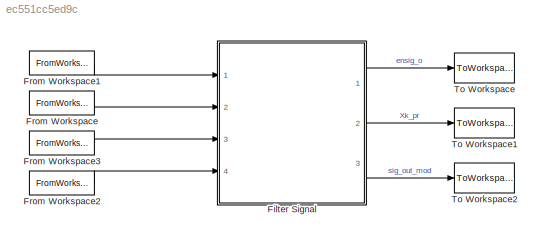
MODEL slx_ec551cc5ed9c
KIND model
CONFIG AbsTol = auto
CONFIG EnableMultiTasking = off
CONFIG FixedStep = auto
CONFIG InitFcn = block_verScript;
CONFIG MaxStep = auto
CONFIG MinStep = auto
CONFIG RelTol = 1e-3
CONFIG SampleTimeConstraint = Unconstrained
CONFIG Solver = VariableStepAuto
CONFIG SolverName = VariableStepAuto
CONFIG StartTime = 0.0
CONFIG StopFcn = filtTestStop;\n
CONFIG StopTime = (nSamp - 1)*Ts
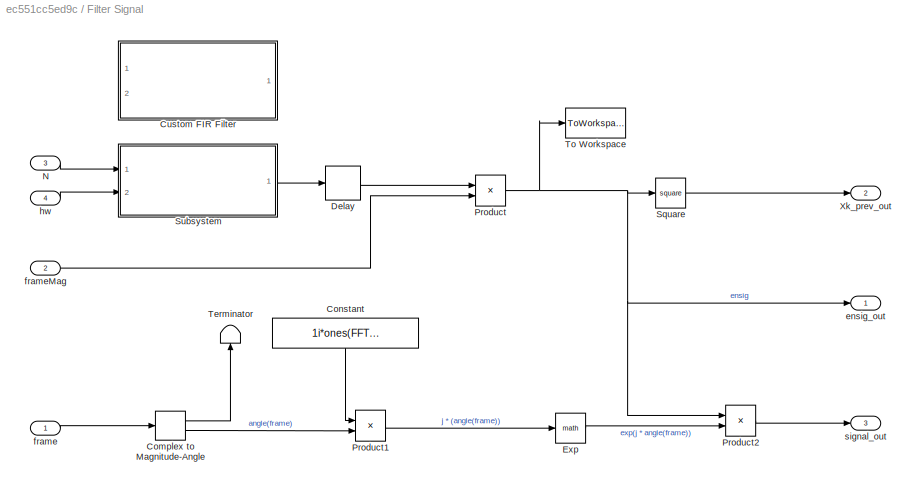
BLOCK [SubSystem] Filter Signal
  Ports = [4, 3]
  RequestExecContextInheritance = off
BLOCK [ComplexToMagnitudeAngle] Filter Signal/Complex to Magnitude-Angle
  Ports = [1, 2]
BLOCK [Constant] Filter Signal/Constant
  SampleTime = -1
  Value = 1i*ones(FFT_size, 1)
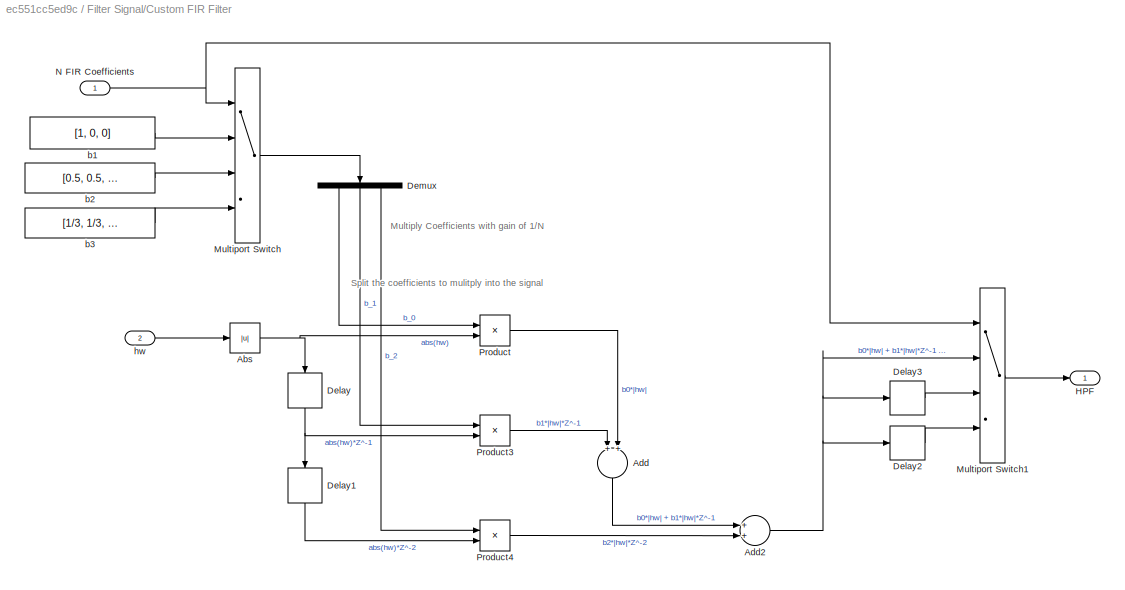
BLOCK [SubSystem] Filter Signal/Custom FIR Filter
  Commented = on
  Ports = [2, 1]
  RequestExecContextInheritance = off
BLOCK [Abs] Filter Signal/Custom FIR Filter/Abs
  SaturateOnIntegerOverflow = off
BLOCK [Sum] Filter Signal/Custom FIR Filter/Add
  InputSameDT = off
  OutDataTypeStr = Inherit: Inherit via internal rule
  Ports = [2, 1]
  SaturateOnIntegerOverflow = off
BLOCK [Sum] Filter Signal/Custom FIR Filter/Add2
  InputSameDT = off
  OutDataTypeStr = Inherit: Inherit via internal rule
  Ports = [2, 1]
  SaturateOnIntegerOverflow = off
BLOCK [Delay] Filter Signal/Custom FIR Filter/Delay
  DelayLength = 1
  InputPortMap = u0
  Ports = [1, 1]
BLOCK [Delay] Filter Signal/Custom FIR Filter/Delay1
  DelayLength = 1
  InputPortMap = u0
  Ports = [1, 1]
BLOCK [Delay] Filter Signal/Custom FIR Filter/Delay2
  InputPortMap = u0
  Ports = [1, 1]
BLOCK [Delay] Filter Signal/Custom FIR Filter/Delay3
  DelayLength = 1
  InputPortMap = u0
  Ports = [1, 1]
BLOCK [Demux] Filter Signal/Custom FIR Filter/Demux
  DisplayOption = bar
  Outputs = 3
  Ports = [1, 3]
BLOCK [Outport] Filter Signal/Custom FIR Filter/HPF
  IconDisplay = Port number
BLOCK [MultiPortSwitch] Filter Signal/Custom FIR Filter/Multiport Switch
  DiagnosticForDefault = Warning
  InputSameDT = off
  Ports = [4, 1]
  SaturateOnIntegerOverflow = off
BLOCK [MultiPortSwitch] Filter Signal/Custom FIR Filter/Multiport Switch1
  DiagnosticForDefault = Warning
  InputSameDT = off
  Ports = [4, 1]
  SaturateOnIntegerOverflow = off
BLOCK [Inport] Filter Signal/Custom FIR Filter/N FIR Coefficients
  IconDisplay = Port number
BLOCK [Product] Filter Signal/Custom FIR Filter/Product
  InputSameDT = off
  OutDataTypeStr = Inherit: Inherit via internal rule
  Ports = [2, 1]
  RndMeth = Floor
  SaturateOnIntegerOverflow = off
BLOCK [Product] Filter Signal/Custom FIR Filter/Product3
  InputSameDT = off
  OutDataTypeStr = Inherit: Inherit via internal rule
  Ports = [2, 1]
  RndMeth = Floor
  SaturateOnIntegerOverflow = off
BLOCK [Product] Filter Signal/Custom FIR Filter/Product4
  InputSameDT = off
  OutDataTypeStr = Inherit: Inherit via internal rule
  Ports = [2, 1]
  RndMeth = Floor
  SaturateOnIntegerOverflow = off
BLOCK [Constant] Filter Signal/Custom FIR Filter/b1
  SampleTime = -1
  Value = [1, 0, 0]
BLOCK [Constant] Filter Signal/Custom FIR Filter/b2
  SampleTime = -1
  Value = [0.5, 0.5, 0]
BLOCK [Constant] Filter Signal/Custom FIR Filter/b3
  SampleTime = -1
  Value = [1/3, 1/3, 1/3]
BLOCK [Inport] Filter Signal/Custom FIR Filter/hw
  IconDisplay = Port number
  Port = 2
BLOCK [Delay] Filter Signal/Delay
  Commented = through
  DelayLength = 3
  InputPortMap = u0
  Ports = [1, 1]
BLOCK [Math] Filter Signal/Exp
  Ports = [1, 1]
BLOCK [Inport] Filter Signal/N
  IconDisplay = Port number
  Port = 3
BLOCK [Product] Filter Signal/Product
  InputSameDT = off
  OutDataTypeStr = Inherit: Inherit via internal rule
  Ports = [2, 1]
  RndMeth = Floor
  SaturateOnIntegerOverflow = off
BLOCK [Product] Filter Signal/Product1
  InputSameDT = off
  OutDataTypeStr = Inherit: Inherit via internal rule
  Ports = [2, 1]
  RndMeth = Floor
  SaturateOnIntegerOverflow = off
BLOCK [Product] Filter Signal/Product2
  InputSameDT = off
  OutDataTypeStr = Inherit: Inherit via internal rule
  Ports = [2, 1]
  RndMeth = Floor
  SaturateOnIntegerOverflow = off
BLOCK [Math] Filter Signal/Square
  Operator = square
  Ports = [1, 1]
  RndMeth = Zero
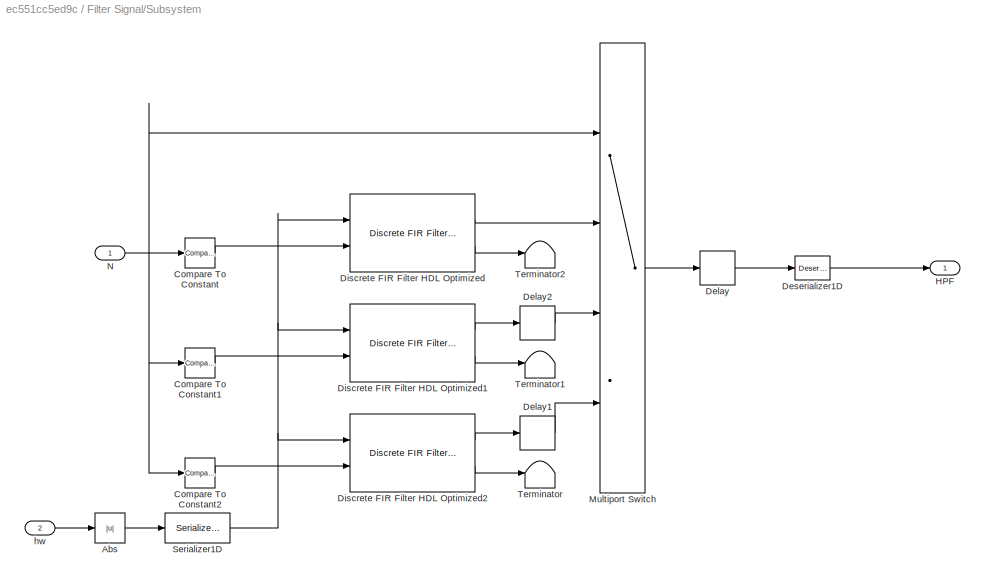
BLOCK [SubSystem] Filter Signal/Subsystem
  Ports = [2, 1]
  RequestExecContextInheritance = off
BLOCK [Abs] Filter Signal/Subsystem/Abs
  SaturateOnIntegerOverflow = off
BLOCK [Reference] Filter Signal/Subsystem/Compare To Constant  REF=simulink/Logic and Bit
Operations/Compare
To Constant
  Ports = [1, 1]
  SourceBlock = simulink/Logic and Bit\nOperations/Compare\nTo Constant
  SourceProductBaseCode = SL
  SourceProductName = Simulink
  SourceType = Compare To Constant
BLOCK [Reference] Filter Signal/Subsystem/Compare To Constant1  REF=simulink/Logic and Bit
Operations/Compare
To Constant
  Ports = [1, 1]
  SourceBlock = simulink/Logic and Bit\nOperations/Compare\nTo Constant
  SourceProductBaseCode = SL
  SourceProductName = Simulink
  SourceType = Compare To Constant
BLOCK [Reference] Filter Signal/Subsystem/Compare To Constant2  REF=simulink/Logic and Bit
Operations/Compare
To Constant
  Ports = [1, 1]
  SourceBlock = simulink/Logic and Bit\nOperations/Compare\nTo Constant
  SourceProductBaseCode = SL
  SourceProductName = Simulink
  SourceType = Compare To Constant
BLOCK [Delay] Filter Signal/Subsystem/Delay
  Commented = through
  InputPortMap = u0
  Ports = [1, 1]
BLOCK [Delay] Filter Signal/Subsystem/Delay1
  Commented = through
  InputPortMap = u0
  Ports = [1, 1]
BLOCK [Delay] Filter Signal/Subsystem/Delay2
  Commented = through
  DelayLength = 1
  InputPortMap = u0
  Ports = [1, 1]
BLOCK [Reference] Filter Signal/Subsystem/Deserializer1D  REF=hdlsllib/HDL Operations/Deserializer1D
  Ports = [1, 1]
  SourceBlock = hdlsllib/HDL Operations/Deserializer1D
  SourceProductBaseCode = SL
  SourceProductName = Simulink
  SourceType = Deserializer1D
BLOCK [Reference] Filter Signal/Subsystem/Discrete FIR Filter HDL Optimized  REF=dsphdlfiltering/Discrete FIR Filter
HDL Optimized
  Ports = [2, 2]
  SourceBlock = dsphdlfiltering/Discrete FIR Filter\nHDL Optimized
  SourceProductBaseCode = DS
  SourceProductName = DSP System Toolbox
  SourceType = Discrete FIR Filter HDL Optimized
BLOCK [Reference] Filter Signal/Subsystem/Discrete FIR Filter HDL Optimized1  REF=dsphdlfiltering/Discrete FIR Filter
HDL Optimized
  Ports = [2, 2]
  SourceBlock = dsphdlfiltering/Discrete FIR Filter\nHDL Optimized
  SourceProductBaseCode = DS
  SourceProductName = DSP System Toolbox
  SourceType = Discrete FIR Filter HDL Optimized
BLOCK [Reference] Filter Signal/Subsystem/Discrete FIR Filter HDL Optimized2  REF=dsphdlfiltering/Discrete FIR Filter
HDL Optimized
  Ports = [2, 2]
  SourceBlock = dsphdlfiltering/Discrete FIR Filter\nHDL Optimized
  SourceProductBaseCode = DS
  SourceProductName = DSP System Toolbox
  SourceType = Discrete FIR Filter HDL Optimized
BLOCK [Outport] Filter Signal/Subsystem/HPF
  IconDisplay = Port number
BLOCK [MultiPortSwitch] Filter Signal/Subsystem/Multiport Switch
  InputSameDT = off
  Ports = [4, 1]
  SaturateOnIntegerOverflow = off
BLOCK [Inport] Filter Signal/Subsystem/N
  IconDisplay = Port number
BLOCK [Reference] Filter Signal/Subsystem/Serializer1D  REF=hdlsllib/HDL Operations/Serializer1D
  Ports = [1, 1]
  SourceBlock = hdlsllib/HDL Operations/Serializer1D
  SourceProductBaseCode = SL
  SourceProductName = Simulink
  SourceType = Serializer1D
BLOCK [Terminator] Filter Signal/Subsystem/Terminator
BLOCK [Terminator] Filter Signal/Subsystem/Terminator1
BLOCK [Terminator] Filter Signal/Subsystem/Terminator2
BLOCK [Inport] Filter Signal/Subsystem/hw
  IconDisplay = Port number
  Port = 2
BLOCK [Terminator] Filter Signal/Terminator
BLOCK [ToWorkspace] Filter Signal/To Workspace
  FixptAsFi = on
  MaxDataPoints = inf
  Ports = [1]
  SampleTime = -1
  SaveFormat = Structure With Time
  VariableName = ensigO
BLOCK [Outport] Filter Signal/Xk_prev_out
  IconDisplay = Port number
  Port = 2
BLOCK [Outport] Filter Signal/ensig_out
  IconDisplay = Port number
BLOCK [Inport] Filter Signal/frame
  IconDisplay = Port number
BLOCK [Inport] Filter Signal/frameMag
  IconDisplay = Port number
  Port = 2
BLOCK [Inport] Filter Signal/hw
  IconDisplay = Port number
  Port = 4
BLOCK [Outport] Filter Signal/signal_out
  IconDisplay = Port number
  Port = 3
BLOCK [FromWorkspace] From Workspace
  SampleTime = Ts
  VariableName = frameMagSim
  ZeroCross = on
BLOCK [FromWorkspace] From Workspace1
  SampleTime = Ts
  VariableName = frameSim
  ZeroCross = on
BLOCK [FromWorkspace] From Workspace2
  SampleTime = Ts
  VariableName = hwSim
  ZeroCross = on
BLOCK [FromWorkspace] From Workspace3
  SampleTime = Ts
  VariableName = NSim
  ZeroCross = on
BLOCK [ToWorkspace] To Workspace
  FixptAsFi = on
  MaxDataPoints = inf
  Ports = [1]
  SampleTime = -1
  SaveFormat = Timeseries
  VariableName = ensigOutSim
BLOCK [ToWorkspace] To Workspace1
  FixptAsFi = on
  MaxDataPoints = inf
  Ports = [1]
  SampleTime = -1
  SaveFormat = Timeseries
  VariableName = XkprevSimOut
BLOCK [ToWorkspace] To Workspace2
  FixptAsFi = on
  MaxDataPoints = inf
  Ports = [1]
  SampleTime = -1
  SaveFormat = Timeseries
  VariableName = sigOutSim
ANNOTATION Filter Signal/Custom FIR Filter: Multiply Coefficients with gain of 1/N
ANNOTATION Filter Signal/Custom FIR Filter: Split the coefficients to mulitply into the signal
LINE Filter Signal/Complex to Magnitude-Angle:1 -> Filter Signal/Terminator:1
LINE Filter Signal/Complex to Magnitude-Angle:2 -> Filter Signal/Product1:2
LINE Filter Signal/Constant:1 -> Filter Signal/Product1:1
NET Filter Signal/Custom FIR Filter/Abs:1 -> Filter Signal/Custom FIR Filter/Delay:1, Filter Signal/Custom FIR Filter/Product:2
NET Filter Signal/Custom FIR Filter/Add2:1 -> Filter Signal/Custom FIR Filter/Delay2:1, Filter Signal/Custom FIR Filter/Delay3:1, Filter Signal/Custom FIR Filter/Multiport Switch1:2
LINE Filter Signal/Custom FIR Filter/Add:1 -> Filter Signal/Custom FIR Filter/Add2:1
LINE Filter Signal/Custom FIR Filter/Delay1:1 -> Filter Signal/Custom FIR Filter/Product4:2
LINE Filter Signal/Custom FIR Filter/Delay2:1 -> Filter Signal/Custom FIR Filter/Multiport Switch1:4
LINE Filter Signal/Custom FIR Filter/Delay3:1 -> Filter Signal/Custom FIR Filter/Multiport Switch1:3
NET Filter Signal/Custom FIR Filter/Delay:1 -> Filter Signal/Custom FIR Filter/Delay1:1, Filter Signal/Custom FIR Filter/Product3:2
LINE Filter Signal/Custom FIR Filter/Demux:1 -> Filter Signal/Custom FIR Filter/Product:1
LINE Filter Signal/Custom FIR Filter/Demux:2 -> Filter Signal/Custom FIR Filter/Product3:1
LINE Filter Signal/Custom FIR Filter/Demux:3 -> Filter Signal/Custom FIR Filter/Product4:1
LINE Filter Signal/Custom FIR Filter/Multiport Switch1:1 -> Filter Signal/Custom FIR Filter/HPF:1
LINE Filter Signal/Custom FIR Filter/Multiport Switch:1 -> Filter Signal/Custom FIR Filter/Demux:1
NET Filter Signal/Custom FIR Filter/N FIR Coefficients:1 -> Filter Signal/Custom FIR Filter/Multiport Switch1:1, Filter Signal/Custom FIR Filter/Multiport Switch:1
LINE Filter Signal/Custom FIR Filter/Product3:1 -> Filter Signal/Custom FIR Filter/Add:1
LINE Filter Signal/Custom FIR Filter/Product4:1 -> Filter Signal/Custom FIR Filter/Add2:2
LINE Filter Signal/Custom FIR Filter/Product:1 -> Filter Signal/Custom FIR Filter/Add:2
LINE Filter Signal/Custom FIR Filter/b1:1 -> Filter Signal/Custom FIR Filter/Multiport Switch:2
LINE Filter Signal/Custom FIR Filter/b2:1 -> Filter Signal/Custom FIR Filter/Multiport Switch:3
LINE Filter Signal/Custom FIR Filter/b3:1 -> Filter Signal/Custom FIR Filter/Multiport Switch:4
LINE Filter Signal/Custom FIR Filter/hw:1 -> Filter Signal/Custom FIR Filter/Abs:1
LINE Filter Signal/Delay:1 -> Filter Signal/Product:1
LINE Filter Signal/Exp:1 -> Filter Signal/Product2:2
LINE Filter Signal/N:1 -> Filter Signal/Subsystem:1
LINE Filter Signal/Product1:1 -> Filter Signal/Exp:1
LINE Filter Signal/Product2:1 -> Filter Signal/signal_out:1
NET Filter Signal/Product:1 -> Filter Signal/Product2:1, Filter Signal/Square:1, Filter Signal/To Workspace:1, Filter Signal/ensig_out:1
LINE Filter Signal/Square:1 -> Filter Signal/Xk_prev_out:1
LINE Filter Signal/Subsystem/Abs:1 -> Filter Signal/Subsystem/Serializer1D:1
LINE Filter Signal/Subsystem/Compare To Constant1:1 -> Filter Signal/Subsystem/Discrete FIR Filter HDL Optimized1:2
LINE Filter Signal/Subsystem/Compare To Constant2:1 -> Filter Signal/Subsystem/Discrete FIR Filter HDL Optimized2:2
LINE Filter Signal/Subsystem/Compare To Constant:1 -> Filter Signal/Subsystem/Discrete FIR Filter HDL Optimized:2
LINE Filter Signal/Subsystem/Delay1:1 -> Filter Signal/Subsystem/Multiport Switch:4
LINE Filter Signal/Subsystem/Delay2:1 -> Filter Signal/Subsystem/Multiport Switch:3
LINE Filter Signal/Subsystem/Delay:1 -> Filter Signal/Subsystem/Deserializer1D:1
LINE Filter Signal/Subsystem/Deserializer1D:1 -> Filter Signal/Subsystem/HPF:1
LINE Filter Signal/Subsystem/Discrete FIR Filter HDL Optimized1:1 -> Filter Signal/Subsystem/Delay2:1
LINE Filter Signal/Subsystem/Discrete FIR Filter HDL Optimized1:2 -> Filter Signal/Subsystem/Terminator1:1
LINE Filter Signal/Subsystem/Discrete FIR Filter HDL Optimized2:1 -> Filter Signal/Subsystem/Delay1:1
LINE Filter Signal/Subsystem/Discrete FIR Filter HDL Optimized2:2 -> Filter Signal/Subsystem/Terminator:1
LINE Filter Signal/Subsystem/Discrete FIR Filter HDL Optimized:1 -> Filter Signal/Subsystem/Multiport Switch:2
LINE Filter Signal/Subsystem/Discrete FIR Filter HDL Optimized:2 -> Filter Signal/Subsystem/Terminator2:1
LINE Filter Signal/Subsystem/Multiport Switch:1 -> Filter Signal/Subsystem/Delay:1
NET Filter Signal/Subsystem/N:1 -> Filter Signal/Subsystem/Compare To Constant1:1, Filter Signal/Subsystem/Compare To Constant2:1, Filter Signal/Subsystem/Compare To Constant:1, Filter Signal/Subsystem/Multiport Switch:1
NET Filter Signal/Subsystem/Serializer1D:1 -> Filter Signal/Subsystem/Discrete FIR Filter HDL Optimized1:1, Filter Signal/Subsystem/Discrete FIR Filter HDL Optimized2:1, Filter Signal/Subsystem/Discrete FIR Filter HDL Optimized:1
LINE Filter Signal/Subsystem/hw:1 -> Filter Signal/Subsystem/Abs:1
LINE Filter Signal/Subsystem:1 -> Filter Signal/Delay:1
LINE Filter Signal/frame:1 -> Filter Signal/Complex to Magnitude-Angle:1
LINE Filter Signal/frameMag:1 -> Filter Signal/Product:2
LINE Filter Signal/hw:1 -> Filter Signal/Subsystem:2
LINE Filter Signal:1 -> To Workspace:1
LINE Filter Signal:2 -> To Workspace1:1
LINE Filter Signal:3 -> To Workspace2:1
LINE From Workspace1:1 -> Filter Signal:1
LINE From Workspace2:1 -> Filter Signal:4
LINE From Workspace3:1 -> Filter Signal:3
LINE From Workspace:1 -> Filter Signal:2
note: NET lines group one-source signal fan-out (src -> all destinations, sorted); 1:1 wires keep LINE
